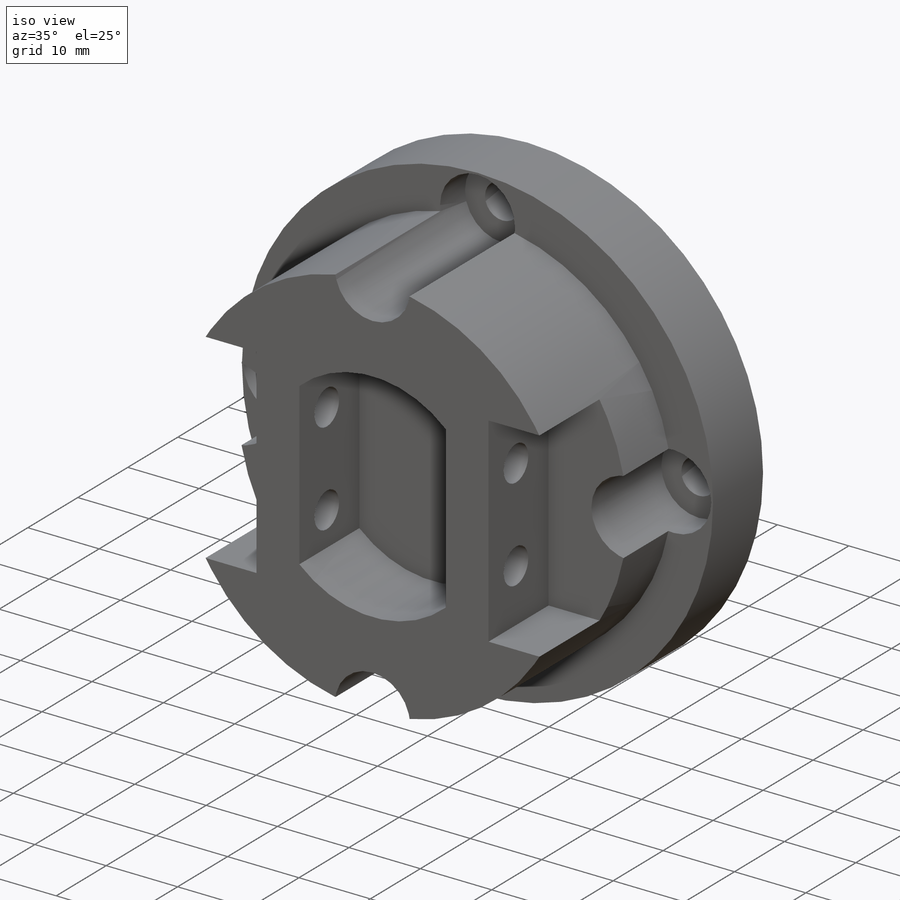
[diagram: iso view]
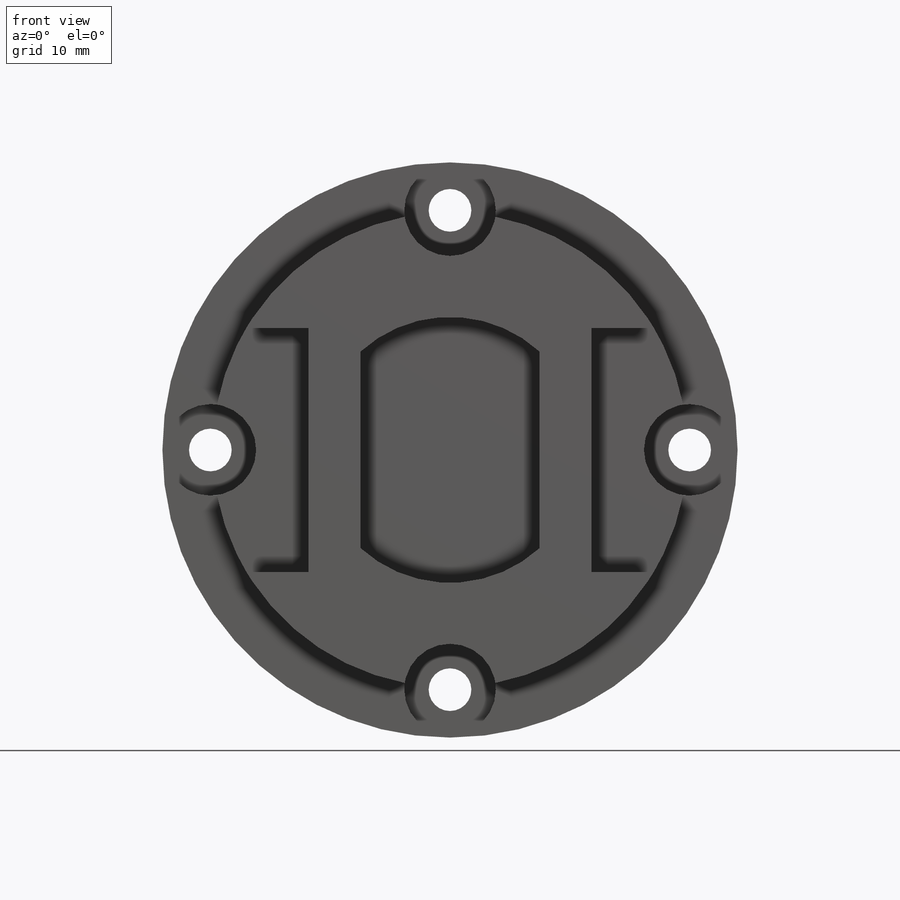
[diagram: front view]
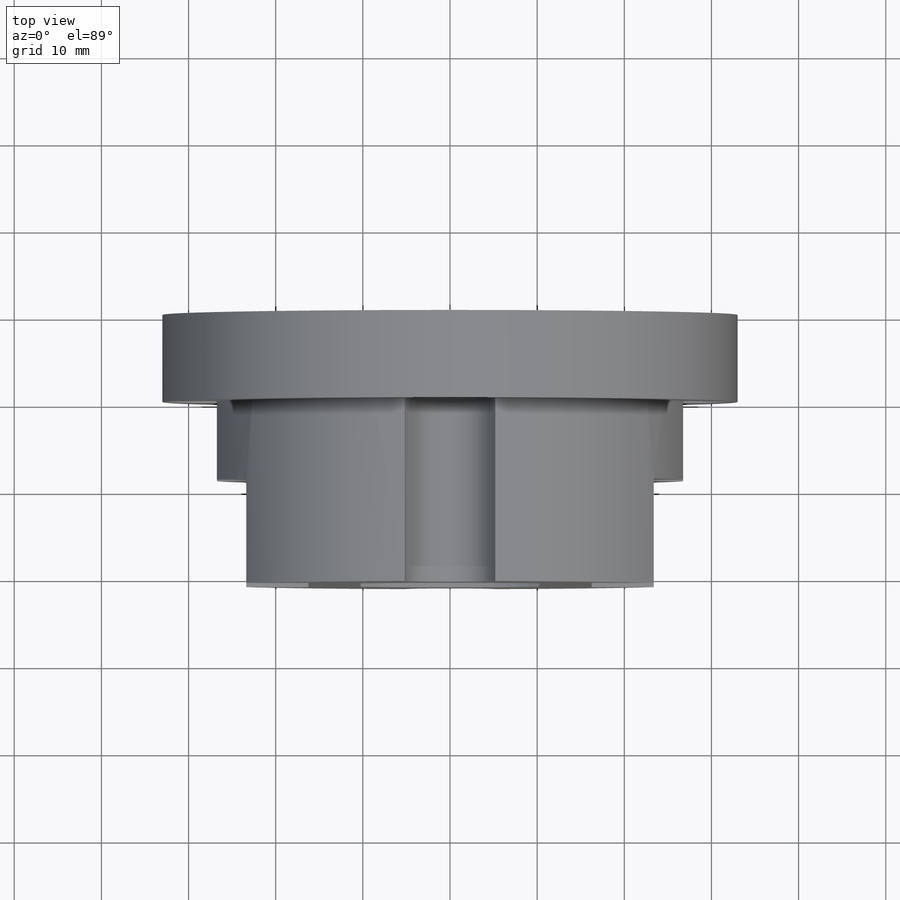
[diagram: top view]
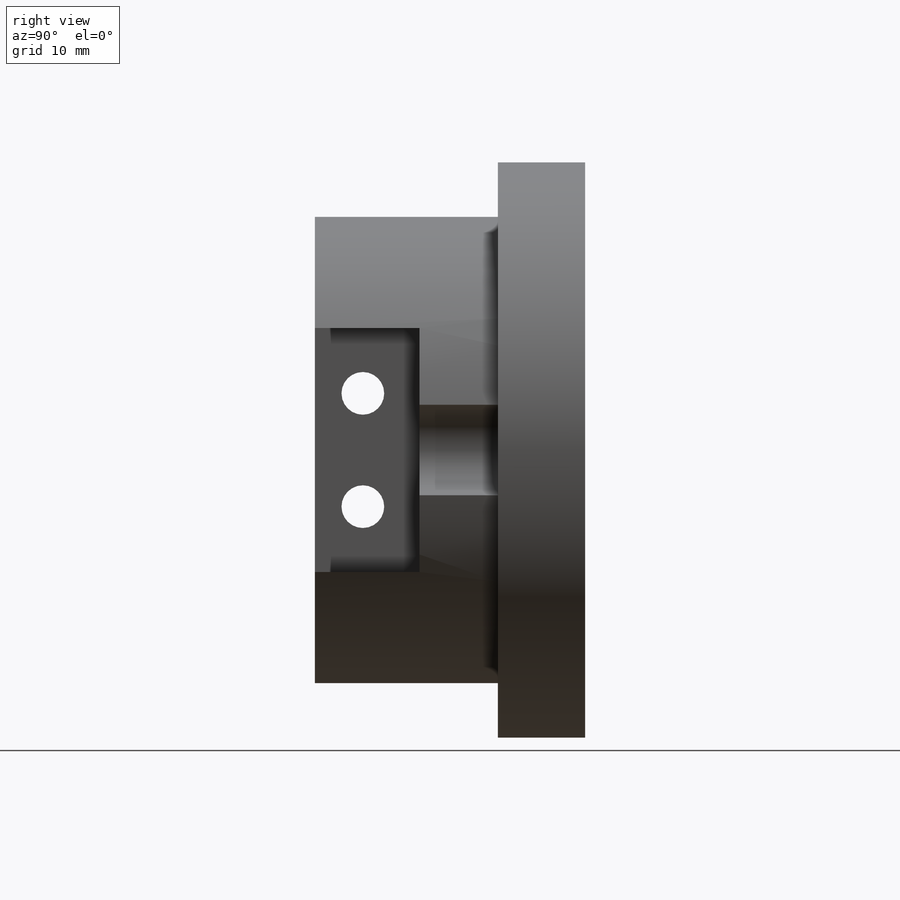
[diagram: right view]
SOLIDWORKS PART (.sldprt)
format: sldprt  version: not decoded by parser v0  size: 214,528 bytes
history: native  units: mm
features: sketch x7, cut_extrude x5, extrude x2, material x1, mirror x1 (+14 scaffold rows collapsed)
feature tree (30):
  scaffold x14  (default folders/planes/origin — collapsed)
  material  "Material <not specified>"
  sketch  "Sketch1"  dims[D1=66.0mm]
  extrude  "Extrude1"  Depth=10mm
  sketch  "Sketch2"  dims[D1=54.5mm]
  extrude  "Extrude2"  Depth=21mm
  sketch  "Sketch3"  dims[D1=30.5mm D2=20.5mm]
  cut_extrude  "Extrude3"  Depth=12mm
  sketch  "Sketch4"  dims[D1=4.9mm D2=55.0mm]
  cut_extrude  "Extrude4"  Depth=36mm
  sketch  "Sketch5"  dims[D2=4.9mm D1=13.0mm D3=6.5mm]
  cut_extrude  "Extrude5"  Depth=38mm
  sketch  "Sketch6"  dims[D1=6.0mm D2=28.0mm]
  cut_extrude  "Extrude6"  Depth=12mm
  mirror  "Mirror1"
  sketch  "Sketch8"  dims[D1=10.5mm]
  cut_extrude  "Extrude7"  Depth=5mm
decode coverage: 14 of 15 modeling features carry decoded parameters
note: suppression state not decoded; provenance and decode notes live in map.json
